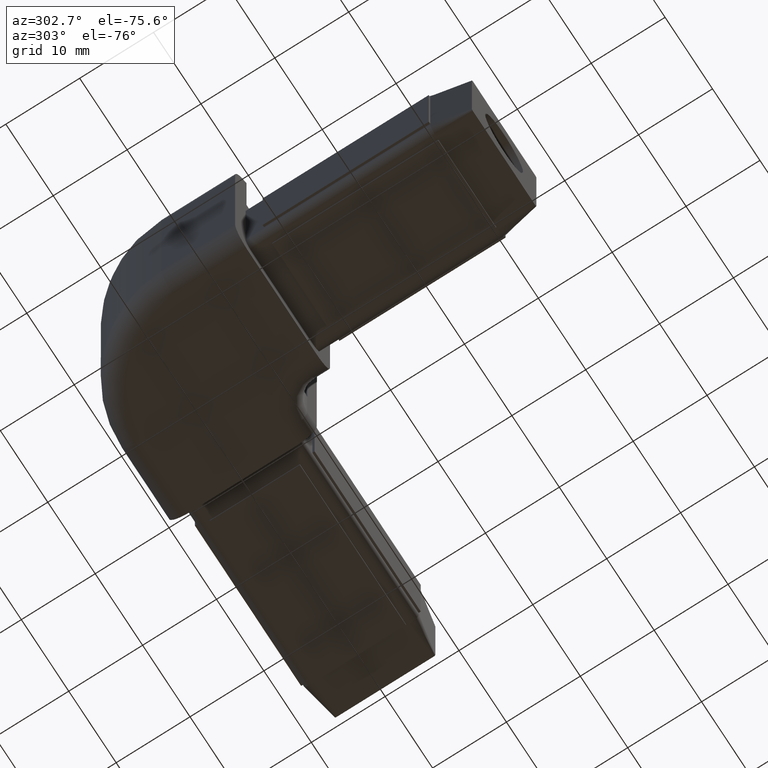
[diagram: clean part render]
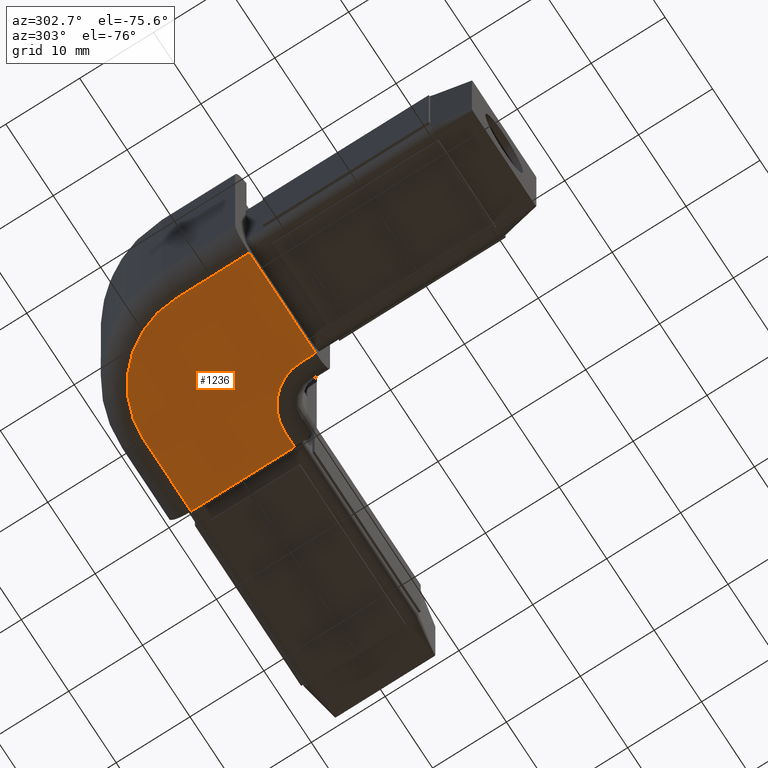
[diagram: same view with one face highlighted and labeled with its STEP entity id]
A machine part, auxiliary view. The second image highlights one B-rep face of the part: STEP entity #1236.
In plain terms, the highlighted planar face has unit normal (0, 0, 1).
Its self-contained STEP definition (entity closure, byte-faithful):
#681=CARTESIAN_POINT('',(-51.999990346764093,-4.999999999999858,-9.999999999999719));
#682=VERTEX_POINT('',#681);
#683=CARTESIAN_POINT('',(-51.999990346764093,-14.999999999999886,-9.999999999999719));
#684=VERTEX_POINT('',#683);
#685=CARTESIAN_POINT('',(-51.999990346764093,-4.999999999999858,-9.999999999999719));
#686=DIRECTION('',(0.0,-1.0,0.0));
#687=VECTOR('',#686,10.000000000000028);
#688=LINE('',#685,#687);
#689=EDGE_CURVE('',#682,#684,#688,.T.);
#723=CARTESIAN_POINT('',(-29.999990346764093,7.000000000000114,-9.999999999999719));
#724=VERTEX_POINT('',#723);
#725=CARTESIAN_POINT('',(-39.999990346764093,7.000000000000114,-9.999999999999719));
#726=VERTEX_POINT('',#725);
#727=CARTESIAN_POINT('',(-29.999990346764093,7.000000000000114,-9.999999999999719));
#728=DIRECTION('',(-1.0,0.0,0.0));
#729=VECTOR('',#728,10.0);
#730=LINE('',#727,#729);
#731=EDGE_CURVE('',#724,#726,#730,.T.);
#900=CARTESIAN_POINT('',(-39.999990346764093,-4.999999999999858,-9.999999999999719));
#901=DIRECTION('',(0.0,0.0,1.0));
#902=DIRECTION('',(1.0,0.0,0.0));
#903=AXIS2_PLACEMENT_3D('',#900,#901,#902);
#904=CIRCLE('',#903,11.999999999999973);
#905=EDGE_CURVE('',#726,#682,#904,.T.);
#940=CARTESIAN_POINT('',(-29.999990346764093,-6.999999999999886,-9.999999999999719));
#941=VERTEX_POINT('',#940);
#942=CARTESIAN_POINT('',(-29.999990346764093,-6.999999999999886,-9.999999999999719));
#943=DIRECTION('',(0.0,1.0,0.0));
#944=VECTOR('',#943,14.0);
#945=LINE('',#942,#944);
#946=EDGE_CURVE('',#941,#724,#945,.T.);
#1050=CARTESIAN_POINT('',(-31.999990346763980,-6.999999999999886,-9.999999999999719));
#1051=VERTEX_POINT('',#1050);
#1059=CARTESIAN_POINT('',(-31.999990346763980,-6.999999999999886,-9.999999999999719));
#1060=DIRECTION('',(1.0,0.0,0.0));
#1061=VECTOR('',#1060,1.999999999999886);
#1062=LINE('',#1059,#1061);
#1063=EDGE_CURVE('',#1051,#941,#1062,.T.);
#1080=CARTESIAN_POINT('',(-37.999990346763980,-14.999999999999886,-9.999999999999719));
#1081=VERTEX_POINT('',#1080);
#1082=CARTESIAN_POINT('',(-51.999990346764093,-14.999999999999886,-9.999999999999719));
#1083=DIRECTION('',(1.0,0.0,0.0));
#1084=VECTOR('',#1083,14.000000000000114);
#1085=LINE('',#1082,#1084);
#1086=EDGE_CURVE('',#684,#1081,#1085,.T.);
#1189=CARTESIAN_POINT('',(-37.999990346763980,-12.999999999999886,-9.999999999999719));
#1190=VERTEX_POINT('',#1189);
#1191=CARTESIAN_POINT('',(-37.999990346763980,-14.999999999999886,-9.999999999999719));
#1192=DIRECTION('',(0.0,1.0,0.0));
#1193=VECTOR('',#1192,2.0);
#1194=LINE('',#1191,#1193);
#1195=EDGE_CURVE('',#1081,#1190,#1194,.T.);
#1215=CARTESIAN_POINT('',(-57.500002348189810,-17.500012001474374,-9.999999999999719));
#1216=DIRECTION('',(0.0,0.0,1.0));
#1217=DIRECTION('',(1.0,0.0,0.0));
#1218=AXIS2_PLACEMENT_3D('',#1215,#1216,#1217);
#1219=PLANE('',#1218);
#1220=ORIENTED_EDGE('',*,*,#946,.F.);
#1221=ORIENTED_EDGE('',*,*,#1063,.F.);
#1222=CARTESIAN_POINT('',(-31.999990346763980,-12.999999999999886,-9.999999999999719));
#1223=DIRECTION('',(0.0,0.0,-1.0));
#1224=DIRECTION('',(-1.0,0.0,0.0));
#1225=AXIS2_PLACEMENT_3D('',#1222,#1223,#1224);
#1226=CIRCLE('',#1225,6.0);
#1227=EDGE_CURVE('',#1190,#1051,#1226,.T.);
#1228=ORIENTED_EDGE('',*,*,#1227,.F.);
#1229=ORIENTED_EDGE('',*,*,#1195,.F.);
#1230=ORIENTED_EDGE('',*,*,#1086,.F.);
#1231=ORIENTED_EDGE('',*,*,#689,.F.);
#1232=ORIENTED_EDGE('',*,*,#905,.F.);
#1233=ORIENTED_EDGE('',*,*,#731,.F.);
#1234=EDGE_LOOP('',(#1220,#1221,#1228,#1229,#1230,#1231,#1232,#1233));
#1235=FACE_OUTER_BOUND('',#1234,.T.);
#1236=ADVANCED_FACE('',(#1235),#1219,.F.);